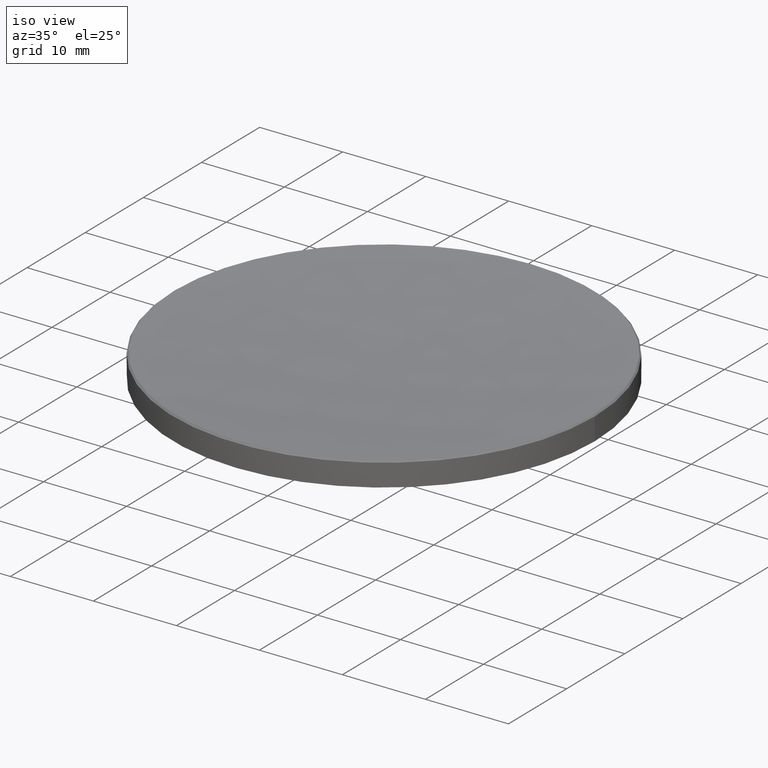
[diagram: clean part render]
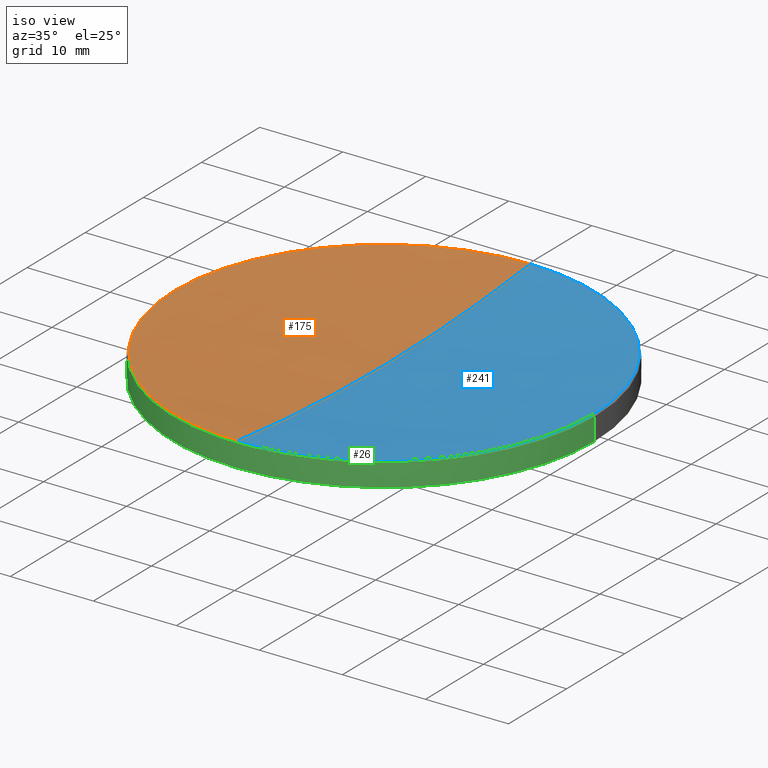
[diagram: same view with three faces highlighted in distinct colors, each labeled with its STEP entity id]
A machine part, iso view with three faces highlighted in distinct colors.
Their STEP definitions:

[orange] entity #175 — the highlighted spherical surface has radius 224.67 mm.
#6 = DIRECTION ( 'NONE',  ( 1.000000000000000000, 0.000000000000000000, 0.000000000000000000 ) ) ;
#10 = AXIS2_PLACEMENT_3D ( 'NONE', #168, #84, #130 ) ;
#18 = CIRCLE ( 'NONE', #10, 224.6699999999999875 ) ;
#40 = CIRCLE ( 'NONE', #271, 224.6699999999999875 ) ;
#46 = EDGE_CURVE ( 'NONE', #258, #71, #201, .T. ) ;
#48 = DIRECTION ( 'NONE',  ( -1.224646799147353207E-16, -1.000000000000000000, 0.000000000000000000 ) ) ;
#59 = VERTEX_POINT ( 'NONE', #250 ) ;
#70 = ORIENTED_EDGE ( 'NONE', *, *, #257, .T. ) ;
#71 = VERTEX_POINT ( 'NONE', #264 ) ;
#74 = DIRECTION ( 'NONE',  ( -1.000000000000000000, 0.000000000000000000, 0.000000000000000000 ) ) ;
#84 = DIRECTION ( 'NONE',  ( 1.000000000000000000, 0.000000000000000000, 0.000000000000000000 ) ) ;
#86 = ORIENTED_EDGE ( 'NONE', *, *, #123, .F. ) ;
#89 = DIRECTION ( 'NONE',  ( -1.000000000000000000, 1.224646799147353207E-16, 0.000000000000000000 ) ) ;
#99 = DIRECTION ( 'NONE',  ( 1.000000000000000000, 0.000000000000000000, 0.000000000000000000 ) ) ;
#108 = ORIENTED_EDGE ( 'NONE', *, *, #202, .T. ) ;
#121 = FACE_OUTER_BOUND ( 'NONE', #129, .T. ) ;
#123 = EDGE_CURVE ( 'NONE', #59, #225, #40, .T. ) ;
#129 = EDGE_LOOP ( 'NONE', ( #86, #70, #227, #108 ) ) ;
#130 = DIRECTION ( 'NONE',  ( 0.000000000000000000, 0.000000000000000000, -1.000000000000000000 ) ) ;
#141 = DIRECTION ( 'NONE',  ( 0.000000000000000000, 1.000000000000000000, 0.000000000000000000 ) ) ;
#142 = AXIS2_PLACEMENT_3D ( 'NONE', #237, #74, #141 ) ;
#149 = CARTESIAN_POINT ( 'NONE',  ( 0.000000000000000000, 25.22036627463835501, 15.87963372536149720 ) ) ;
#158 = CARTESIAN_POINT ( 'NONE',  ( 0.000000000000000000, 0.000000000000000000, 239.1295878686335641 ) ) ;
#165 = CARTESIAN_POINT ( 'NONE',  ( -3.088604083155972347E-15, -25.22036627463835501, 15.87963372536149720 ) ) ;
#168 = CARTESIAN_POINT ( 'NONE',  ( 0.000000000000000000, 0.000000000000000000, 239.1295878686335641 ) ) ;
#175 = ADVANCED_FACE ( 'NONE', ( #121 ), #235, .F. ) ;
#186 = AXIS2_PLACEMENT_3D ( 'NONE', #221, #254, #99 ) ;
#195 = AXIS2_PLACEMENT_3D ( 'NONE', #266, #230, #6 ) ;
#201 = CIRCLE ( 'NONE', #195, 25.22036627463847935 ) ;
#202 = EDGE_CURVE ( 'NONE', #71, #225, #265, .T. ) ;
#221 = CARTESIAN_POINT ( 'NONE',  ( 0.000000000000000000, 0.000000000000000000, 15.87963372536149720 ) ) ;
#225 = VERTEX_POINT ( 'NONE', #165 ) ;
#227 = ORIENTED_EDGE ( 'NONE', *, *, #46, .T. ) ;
#230 = DIRECTION ( 'NONE',  ( -0.000000000000000000, -0.000000000000000000, 1.000000000000000000 ) ) ;
#235 = SPHERICAL_SURFACE ( 'NONE', #142, 224.6699999999999875 ) ;
#237 = CARTESIAN_POINT ( 'NONE',  ( 0.000000000000000000, 0.000000000000000000, 239.1295878686335641 ) ) ;
#250 = CARTESIAN_POINT ( 'NONE',  ( 0.000000000000000000, 1.375706981822179092E-14, 14.45958786863357837 ) ) ;
#254 = DIRECTION ( 'NONE',  ( -0.000000000000000000, -0.000000000000000000, 1.000000000000000000 ) ) ;
#257 = EDGE_CURVE ( 'NONE', #59, #258, #18, .T. ) ;
#258 = VERTEX_POINT ( 'NONE', #149 ) ;
#264 = CARTESIAN_POINT ( 'NONE',  ( -25.22036627463847935, 0.000000000000000000, 15.87963372536149720 ) ) ;
#265 = CIRCLE ( 'NONE', #186, 25.22036627463847935 ) ;
#266 = CARTESIAN_POINT ( 'NONE',  ( 0.000000000000000000, 0.000000000000000000, 15.87963372536149720 ) ) ;
#271 = AXIS2_PLACEMENT_3D ( 'NONE', #158, #89, #48 ) ;

[blue] entity #241 — the highlighted spherical surface has radius 224.67 mm.
#3 = CIRCLE ( 'NONE', #115, 25.22036627463847935 ) ;
#10 = AXIS2_PLACEMENT_3D ( 'NONE', #168, #84, #130 ) ;
#18 = CIRCLE ( 'NONE', #10, 224.6699999999999875 ) ;
#40 = CIRCLE ( 'NONE', #271, 224.6699999999999875 ) ;
#41 = DIRECTION ( 'NONE',  ( 0.000000000000000000, 1.000000000000000000, 0.000000000000000000 ) ) ;
#48 = DIRECTION ( 'NONE',  ( -1.224646799147353207E-16, -1.000000000000000000, 0.000000000000000000 ) ) ;
#59 = VERTEX_POINT ( 'NONE', #250 ) ;
#63 = ORIENTED_EDGE ( 'NONE', *, *, #257, .F. ) ;
#73 = EDGE_CURVE ( 'NONE', #261, #258, #170, .T. ) ;
#84 = DIRECTION ( 'NONE',  ( 1.000000000000000000, 0.000000000000000000, 0.000000000000000000 ) ) ;
#89 = DIRECTION ( 'NONE',  ( -1.000000000000000000, 1.224646799147353207E-16, 0.000000000000000000 ) ) ;
#93 = EDGE_CURVE ( 'NONE', #225, #261, #3, .T. ) ;
#96 = DIRECTION ( 'NONE',  ( 1.000000000000000000, 0.000000000000000000, 0.000000000000000000 ) ) ;
#115 = AXIS2_PLACEMENT_3D ( 'NONE', #229, #156, #262 ) ;
#118 = FACE_OUTER_BOUND ( 'NONE', #145, .T. ) ;
#123 = EDGE_CURVE ( 'NONE', #59, #225, #40, .T. ) ;
#130 = DIRECTION ( 'NONE',  ( 0.000000000000000000, 0.000000000000000000, -1.000000000000000000 ) ) ;
#132 = CARTESIAN_POINT ( 'NONE',  ( 0.000000000000000000, 0.000000000000000000, 15.87963372536149720 ) ) ;
#145 = EDGE_LOOP ( 'NONE', ( #63, #153, #282, #148 ) ) ;
#148 = ORIENTED_EDGE ( 'NONE', *, *, #73, .T. ) ;
#149 = CARTESIAN_POINT ( 'NONE',  ( 0.000000000000000000, 25.22036627463835501, 15.87963372536149720 ) ) ;
#153 = ORIENTED_EDGE ( 'NONE', *, *, #123, .T. ) ;
#156 = DIRECTION ( 'NONE',  ( -0.000000000000000000, -0.000000000000000000, 1.000000000000000000 ) ) ;
#158 = CARTESIAN_POINT ( 'NONE',  ( 0.000000000000000000, 0.000000000000000000, 239.1295878686335641 ) ) ;
#165 = CARTESIAN_POINT ( 'NONE',  ( -3.088604083155972347E-15, -25.22036627463835501, 15.87963372536149720 ) ) ;
#168 = CARTESIAN_POINT ( 'NONE',  ( 0.000000000000000000, 0.000000000000000000, 239.1295878686335641 ) ) ;
#170 = CIRCLE ( 'NONE', #222, 25.22036627463847935 ) ;
#189 = SPHERICAL_SURFACE ( 'NONE', #245, 224.6699999999999875 ) ;
#222 = AXIS2_PLACEMENT_3D ( 'NONE', #132, #251, #96 ) ;
#225 = VERTEX_POINT ( 'NONE', #165 ) ;
#229 = CARTESIAN_POINT ( 'NONE',  ( 0.000000000000000000, 0.000000000000000000, 15.87963372536149720 ) ) ;
#241 = ADVANCED_FACE ( 'NONE', ( #118 ), #189, .F. ) ;
#243 = DIRECTION ( 'NONE',  ( -1.000000000000000000, 0.000000000000000000, 0.000000000000000000 ) ) ;
#245 = AXIS2_PLACEMENT_3D ( 'NONE', #268, #243, #41 ) ;
#250 = CARTESIAN_POINT ( 'NONE',  ( 0.000000000000000000, 1.375706981822179092E-14, 14.45958786863357837 ) ) ;
#251 = DIRECTION ( 'NONE',  ( -0.000000000000000000, -0.000000000000000000, 1.000000000000000000 ) ) ;
#257 = EDGE_CURVE ( 'NONE', #59, #258, #18, .T. ) ;
#258 = VERTEX_POINT ( 'NONE', #149 ) ;
#261 = VERTEX_POINT ( 'NONE', #272 ) ;
#262 = DIRECTION ( 'NONE',  ( 1.000000000000000000, 0.000000000000000000, 0.000000000000000000 ) ) ;
#268 = CARTESIAN_POINT ( 'NONE',  ( 0.000000000000000000, 0.000000000000000000, 239.1295878686335641 ) ) ;
#271 = AXIS2_PLACEMENT_3D ( 'NONE', #158, #89, #48 ) ;
#272 = CARTESIAN_POINT ( 'NONE',  ( 25.22036627463847935, 3.099603476495131903E-15, 15.87963372536149720 ) ) ;
#282 = ORIENTED_EDGE ( 'NONE', *, *, #93, .T. ) ;

[green] entity #26 — the highlighted cylindrical surface (partial cylindrical patch) has radius 25.4 mm, axis along (-0, -0, -1).
#1 = DIRECTION ( 'NONE',  ( 1.000000000000000000, 0.000000000000000000, 0.000000000000000000 ) ) ;
#4 = CARTESIAN_POINT ( 'NONE',  ( 0.000000000000000000, 0.000000000000000000, 20.00000000000000000 ) ) ;
#16 = VERTEX_POINT ( 'NONE', #31 ) ;
#17 = DIRECTION ( 'NONE',  ( -0.000000000000000000, -0.000000000000000000, 1.000000000000000000 ) ) ;
#23 = VERTEX_POINT ( 'NONE', #116 ) ;
#26 = ADVANCED_FACE ( 'NONE', ( #159 ), #183, .T. ) ;
#27 = DIRECTION ( 'NONE',  ( -0.000000000000000000, -0.000000000000000000, -1.000000000000000000 ) ) ;
#28 = CIRCLE ( 'NONE', #147, 25.39999999999999858 ) ;
#29 = DIRECTION ( 'NONE',  ( 0.000000000000000000, 0.000000000000000000, -1.000000000000000000 ) ) ;
#30 = VERTEX_POINT ( 'NONE', #94 ) ;
#31 = CARTESIAN_POINT ( 'NONE',  ( -25.39999999999999858, 0.000000000000000000, 15.69999999999996376 ) ) ;
#32 = EDGE_CURVE ( 'NONE', #207, #30, #91, .T. ) ;
#43 = ORIENTED_EDGE ( 'NONE', *, *, #249, .T. ) ;
#47 = DIRECTION ( 'NONE',  ( -0.000000000000000000, -0.000000000000000000, -1.000000000000000000 ) ) ;
#49 = DIRECTION ( 'NONE',  ( -1.000000000000000000, 0.000000000000000000, 0.000000000000000000 ) ) ;
#66 = CARTESIAN_POINT ( 'NONE',  ( 25.39999999999999858, 3.110602869834276865E-15, 20.00000000000000000 ) ) ;
#80 = VERTEX_POINT ( 'NONE', #133 ) ;
#87 = VECTOR ( 'NONE', #47, 1000.000000000000000 ) ;
#91 = LINE ( 'NONE', #66, #87 ) ;
#94 = CARTESIAN_POINT ( 'NONE',  ( 25.39999999999999503, 3.110602869834276471E-15, 13.00000000000000000 ) ) ;
#97 = VECTOR ( 'NONE', #103, 1000.000000000000000 ) ;
#103 = DIRECTION ( 'NONE',  ( -0.000000000000000000, -0.000000000000000000, -1.000000000000000000 ) ) ;
#112 = DIRECTION ( 'NONE',  ( 1.000000000000000000, 0.000000000000000000, 0.000000000000000000 ) ) ;
#114 = ORIENTED_EDGE ( 'NONE', *, *, #122, .T. ) ;
#116 = CARTESIAN_POINT ( 'NONE',  ( -25.39999999999999503, 0.000000000000000000, 13.00000000000000000 ) ) ;
#117 = CIRCLE ( 'NONE', #139, 25.39999999999999503 ) ;
#122 = EDGE_CURVE ( 'NONE', #23, #80, #166, .T. ) ;
#127 = ORIENTED_EDGE ( 'NONE', *, *, #32, .F. ) ;
#133 = CARTESIAN_POINT ( 'NONE',  ( -3.110602869834276076E-15, -25.39999999999999147, 12.99999999999999822 ) ) ;
#134 = CARTESIAN_POINT ( 'NONE',  ( 0.000000000000000000, 0.000000000000000000, 15.69999999999996376 ) ) ;
#139 = AXIS2_PLACEMENT_3D ( 'NONE', #196, #17, #276 ) ;
#140 = AXIS2_PLACEMENT_3D ( 'NONE', #4, #27, #49 ) ;
#147 = AXIS2_PLACEMENT_3D ( 'NONE', #134, #29, #112 ) ;
#151 = EDGE_LOOP ( 'NONE', ( #127, #242, #208, #114, #43 ) ) ;
#152 = EDGE_CURVE ( 'NONE', #207, #16, #28, .T. ) ;
#159 = FACE_OUTER_BOUND ( 'NONE', #151, .T. ) ;
#166 = CIRCLE ( 'NONE', #184, 25.39999999999999503 ) ;
#183 = CYLINDRICAL_SURFACE ( 'NONE', #140, 25.39999999999999858 ) ;
#184 = AXIS2_PLACEMENT_3D ( 'NONE', #206, #248, #1 ) ;
#196 = CARTESIAN_POINT ( 'NONE',  ( 0.000000000000000000, 0.000000000000000000, 13.00000000000000000 ) ) ;
#203 = LINE ( 'NONE', #280, #97 ) ;
#206 = CARTESIAN_POINT ( 'NONE',  ( 0.000000000000000000, 0.000000000000000000, 13.00000000000000000 ) ) ;
#207 = VERTEX_POINT ( 'NONE', #252 ) ;
#208 = ORIENTED_EDGE ( 'NONE', *, *, #269, .T. ) ;
#242 = ORIENTED_EDGE ( 'NONE', *, *, #152, .T. ) ;
#248 = DIRECTION ( 'NONE',  ( -0.000000000000000000, -0.000000000000000000, 1.000000000000000000 ) ) ;
#249 = EDGE_CURVE ( 'NONE', #80, #30, #117, .T. ) ;
#252 = CARTESIAN_POINT ( 'NONE',  ( 25.39999999999999858, 3.110602869834276865E-15, 15.69999999999996376 ) ) ;
#269 = EDGE_CURVE ( 'NONE', #16, #23, #203, .T. ) ;
#276 = DIRECTION ( 'NONE',  ( 1.000000000000000000, 0.000000000000000000, 0.000000000000000000 ) ) ;
#280 = CARTESIAN_POINT ( 'NONE',  ( -25.39999999999999858, 0.000000000000000000, 20.00000000000000000 ) ) ;